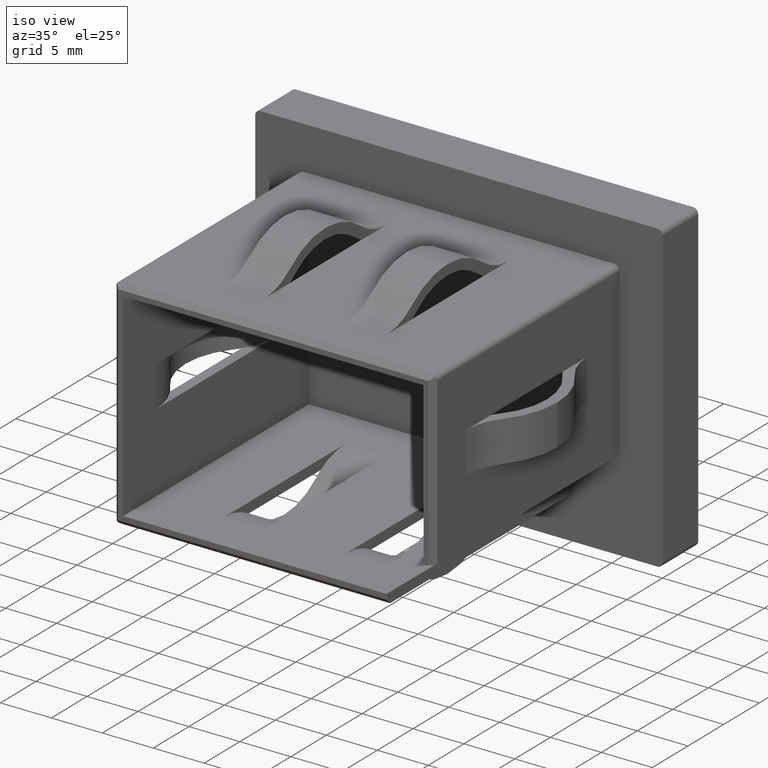
[diagram: clean part render]
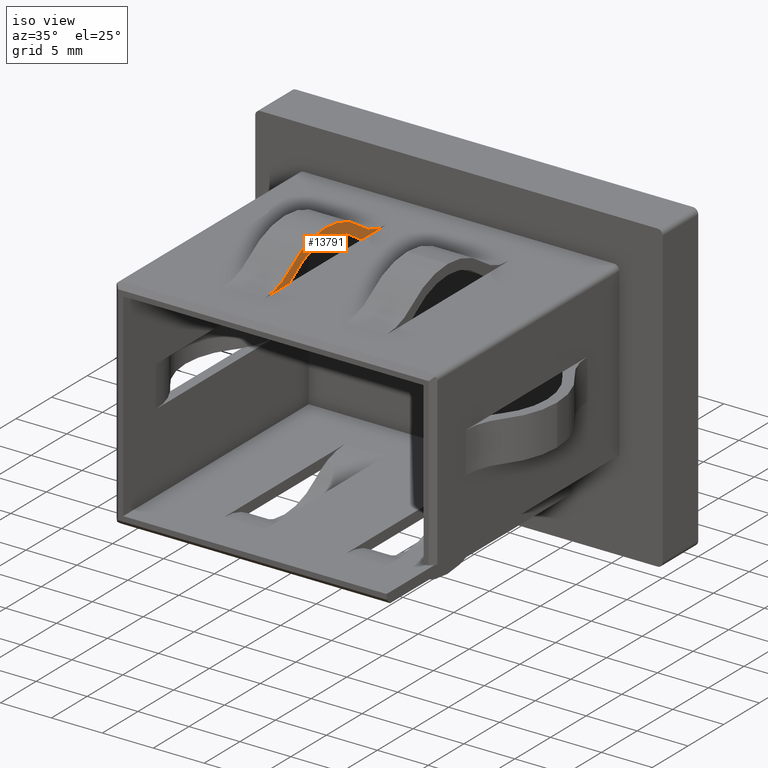
[diagram: same view with one face highlighted and labeled with its STEP entity id]
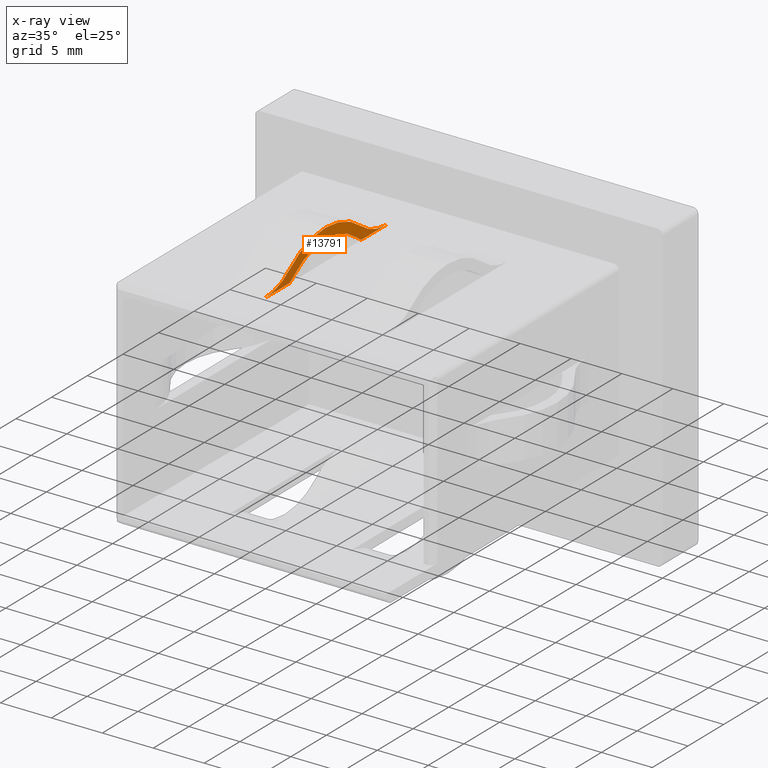
[diagram: x-ray of the same camera — body ghosted, the highlighted face saturated]
A machine part, iso view. The second image highlights one B-rep face of the part: STEP entity #13791.
The next image is the same camera in x-ray: the body ghosted, the highlighted face saturated — about 0% of this face is hidden behind the body in this view.
In plain terms, the highlighted planar face has unit normal (-1, -0, 0).
Its self-contained STEP definition (entity closure, byte-faithful):
#145 = LINE ( 'NONE', #10089, #10436 ) ;
#459 = CARTESIAN_POINT ( 'NONE',  ( -3.999999999999996447, -21.50000000000000355, 10.74999999999999645 ) ) ;
#498 = CARTESIAN_POINT ( 'NONE',  ( -3.999999999999996447, -21.49999955753791880, 16.32597992672963727 ) ) ;
#720 = CARTESIAN_POINT ( 'NONE',  ( -3.999999999999996447, -4.500000000000000888, 16.32597992672964438 ) ) ;
#802 = CARTESIAN_POINT ( 'NONE',  ( -3.999999999999997335, -17.37230745835888257, 11.20683254350985969 ) ) ;
#893 = CARTESIAN_POINT ( 'NONE',  ( -3.999999999999998224, -12.99999977876895940, 5.784313886884254963 ) ) ;
#940 = DIRECTION ( 'NONE',  ( -2.177745207811451911E-16, 0.000000000000000000, -1.000000000000000000 ) ) ;
#1147 = VERTEX_POINT ( 'NONE', #13738 ) ;
#1178 = DIRECTION ( 'NONE',  ( -1.000000000000000000, -1.232595164407830946E-32, 1.996534494339893374E-16 ) ) ;
#1248 = FACE_OUTER_BOUND ( 'NONE', #12065, .T. ) ;
#1272 = VECTOR ( 'NONE', #8763, 1000.000000000000000 ) ;
#1415 = ORIENTED_EDGE ( 'NONE', *, *, #11222, .T. ) ;
#1488 = ORIENTED_EDGE ( 'NONE', *, *, #8680, .T. ) ;
#2014 = AXIS2_PLACEMENT_3D ( 'NONE', #8086, #1178, #11738 ) ;
#2496 = CARTESIAN_POINT ( 'NONE',  ( -3.999999999999997335, -18.01403342840538357, 10.74999999999999645 ) ) ;
#2791 = CARTESIAN_POINT ( 'NONE',  ( -3.999999999999997335, -17.99999977876895940, 11.98529407171674954 ) ) ;
#2874 = AXIS2_PLACEMENT_3D ( 'NONE', #10341, #14975, #4637 ) ;
#2947 = ORIENTED_EDGE ( 'NONE', *, *, #12822, .T. ) ;
#3541 = CIRCLE ( 'NONE', #2014, 6.575979926729632830 ) ;
#4376 = ORIENTED_EDGE ( 'NONE', *, *, #12682, .T. ) ;
#4637 = DIRECTION ( 'NONE',  ( -1.996534494339893374E-16, 0.000000000000000000, -1.000000000000000000 ) ) ;
#4906 = EDGE_CURVE ( 'NONE', #11614, #6391, #8338, .T. ) ;
#5032 = EDGE_CURVE ( 'NONE', #14033, #1147, #9078, .T. ) ;
#5193 = DIRECTION ( 'NONE',  ( -1.555532389617332172E-16, 0.000000000000000000, -1.000000000000000000 ) ) ;
#5933 = CIRCLE ( 'NONE', #11788, 5.575979926729625724 ) ;
#6154 = AXIS2_PLACEMENT_3D ( 'NONE', #893, #13590, #11361 ) ;
#6337 = CARTESIAN_POINT ( 'NONE',  ( -3.999999999999996447, -26.00000000000000000, 10.74999999999999645 ) ) ;
#6391 = VERTEX_POINT ( 'NONE', #2496 ) ;
#6634 = AXIS2_PLACEMENT_3D ( 'NONE', #14803, #7842, #940 ) ;
#6635 = AXIS2_PLACEMENT_3D ( 'NONE', #720, #14566, #5193 ) ;
#6900 = ORIENTED_EDGE ( 'NONE', *, *, #8203, .T. ) ;
#7842 = DIRECTION ( 'NONE',  ( -1.000000000000000000, -1.232595164407830946E-32, 1.996534494339893374E-16 ) ) ;
#8086 = CARTESIAN_POINT ( 'NONE',  ( -3.999999999999996447, -4.500000000000000888, 16.32597992672964438 ) ) ;
#8094 = CARTESIAN_POINT ( 'NONE',  ( -3.999999999999997335, -4.500000000000000000, 10.74999999999999822 ) ) ;
#8203 = EDGE_CURVE ( 'NONE', #11614, #11824, #8421, .T. ) ;
#8292 = CIRCLE ( 'NONE', #6635, 5.575979926729640823 ) ;
#8338 = CIRCLE ( 'NONE', #12862, 6.575979926729639935 ) ;
#8421 = CIRCLE ( 'NONE', #6154, 6.965686113115764577 ) ;
#8680 = EDGE_CURVE ( 'NONE', #10526, #6391, #145, .T. ) ;
#8763 = DIRECTION ( 'NONE',  ( -1.232595164407830946E-32, 1.000000000000000000, 0.000000000000000000 ) ) ;
#9078 = CIRCLE ( 'NONE', #6634, 7.965686113115757472 ) ;
#9541 = EDGE_CURVE ( 'NONE', #13671, #11824, #3541, .T. ) ;
#10049 = CARTESIAN_POINT ( 'NONE',  ( -3.999999999999997335, -7.985966129132509472, 10.74999999999999645 ) ) ;
#10089 = CARTESIAN_POINT ( 'NONE',  ( -3.999999999999996447, -26.00000000000000000, 10.74999999999999645 ) ) ;
#10341 = CARTESIAN_POINT ( 'NONE',  ( -4.000000000000000000, -7.395570986446985676E-32, 8.124265908313123627E-16 ) ) ;
#10436 = VECTOR ( 'NONE', #12441, 1000.000000000000000 ) ;
#10526 = VERTEX_POINT ( 'NONE', #459 ) ;
#10933 = ORIENTED_EDGE ( 'NONE', *, *, #4906, .F. ) ;
#11035 = LINE ( 'NONE', #6337, #1272 ) ;
#11222 = EDGE_CURVE ( 'NONE', #14558, #1147, #8292, .T. ) ;
#11361 = DIRECTION ( 'NONE',  ( -2.490384217443386885E-16, 1.743268952210370918E-15, -1.000000000000000000 ) ) ;
#11614 = VERTEX_POINT ( 'NONE', #802 ) ;
#11647 = CARTESIAN_POINT ( 'NONE',  ( -3.999999999999997335, -8.627692099179036234, 11.20683254350985969 ) ) ;
#11738 = DIRECTION ( 'NONE',  ( -2.637969542646581531E-16, -9.232893399263036096E-16, -1.000000000000000000 ) ) ;
#11788 = AXIS2_PLACEMENT_3D ( 'NONE', #498, #13122, #14335 ) ;
#11824 = VERTEX_POINT ( 'NONE', #11647 ) ;
#11999 = ORIENTED_EDGE ( 'NONE', *, *, #9541, .F. ) ;
#12065 = EDGE_LOOP ( 'NONE', ( #2947, #1488, #10933, #6900, #11999, #4376, #1415, #12948 ) ) ;
#12130 = DIRECTION ( 'NONE',  ( -1.000000000000000000, -1.232595164407830946E-32, 1.996534494339893374E-16 ) ) ;
#12441 = DIRECTION ( 'NONE',  ( -1.232595164407830946E-32, 1.000000000000000000, 0.000000000000000000 ) ) ;
#12682 = EDGE_CURVE ( 'NONE', #13671, #14558, #11035, .T. ) ;
#12822 = EDGE_CURVE ( 'NONE', #14033, #10526, #5933, .T. ) ;
#12862 = AXIS2_PLACEMENT_3D ( 'NONE', #14453, #12130, #13230 ) ;
#12948 = ORIENTED_EDGE ( 'NONE', *, *, #5032, .F. ) ;
#13122 = DIRECTION ( 'NONE',  ( -1.000000000000000000, -1.232595164407830946E-32, 1.996534494339893374E-16 ) ) ;
#13230 = DIRECTION ( 'NONE',  ( -2.637969542646578572E-16, 3.745916750558141859E-14, -1.000000000000000000 ) ) ;
#13590 = DIRECTION ( 'NONE',  ( -1.000000000000000000, -1.232595164407830946E-32, 1.996534494339893374E-16 ) ) ;
#13611 = PLANE ( 'NONE',  #2874 ) ;
#13671 = VERTEX_POINT ( 'NONE', #10049 ) ;
#13738 = CARTESIAN_POINT ( 'NONE',  ( -3.999999999999997335, -7.999999778768970060, 11.98529407171674599 ) ) ;
#13791 = ADVANCED_FACE ( 'NONE', ( #1248 ), #13611, .F. ) ;
#14033 = VERTEX_POINT ( 'NONE', #2791 ) ;
#14335 = DIRECTION ( 'NONE',  ( -1.555532389617336363E-16, 0.000000000000000000, -1.000000000000000000 ) ) ;
#14453 = CARTESIAN_POINT ( 'NONE',  ( -3.999999999999996447, -21.49999955753791880, 16.32597992672963727 ) ) ;
#14558 = VERTEX_POINT ( 'NONE', #8094 ) ;
#14566 = DIRECTION ( 'NONE',  ( -1.000000000000000000, -1.232595164407830946E-32, 1.996534494339893374E-16 ) ) ;
#14803 = CARTESIAN_POINT ( 'NONE',  ( -3.999999999999998224, -12.99999977876895940, 5.784313886884254963 ) ) ;
#14975 = DIRECTION ( 'NONE',  ( -1.000000000000000000, -1.232595164407830946E-32, 1.996534494339893374E-16 ) ) ;